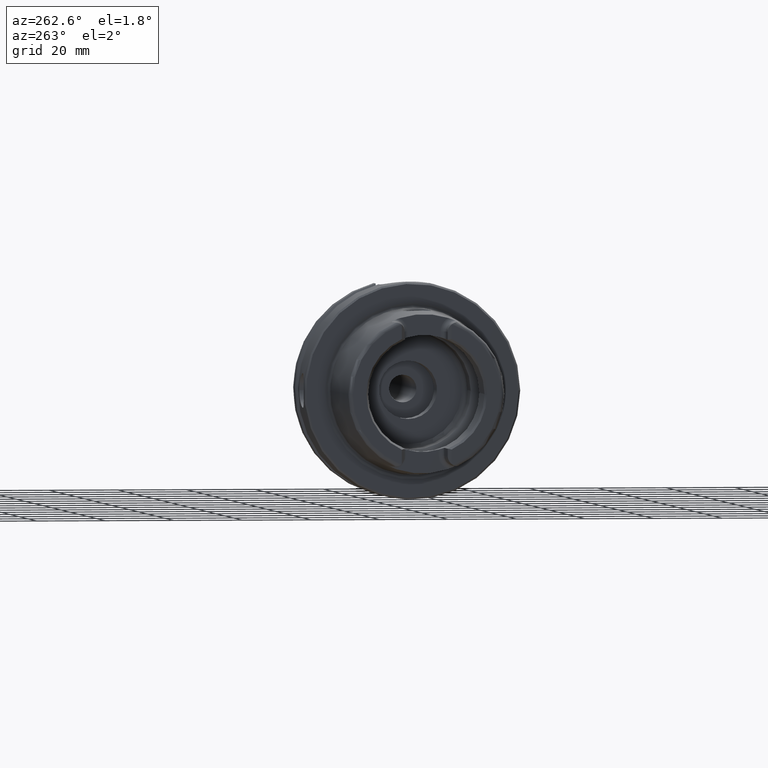
[diagram: clean part render]
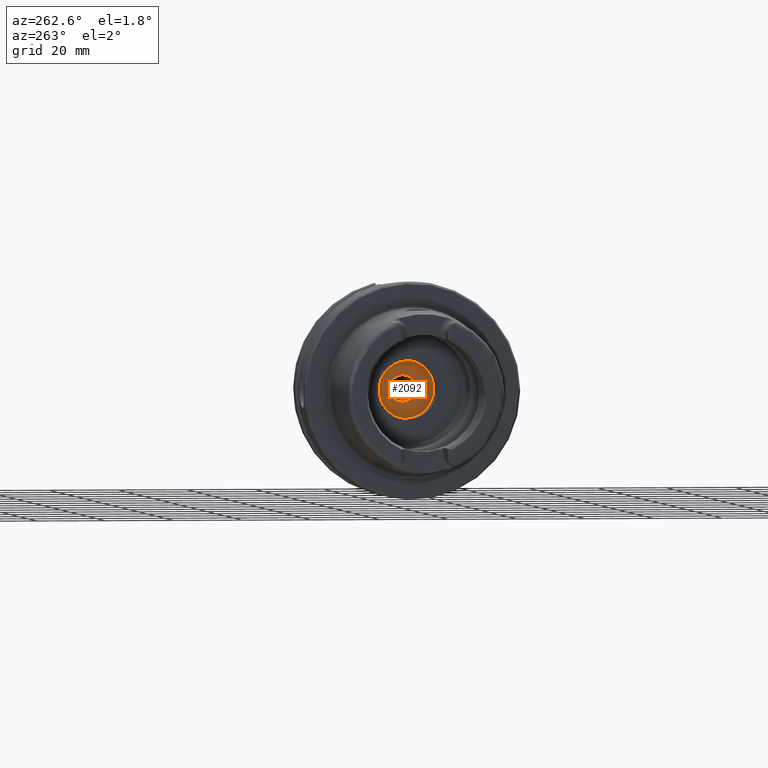
[diagram: same view with one face highlighted and labeled with its STEP entity id]
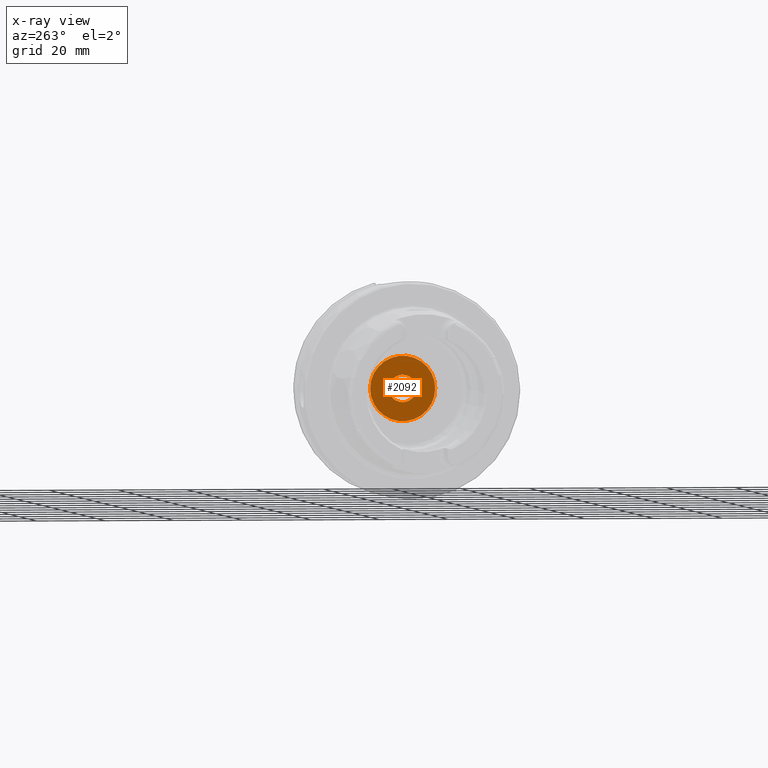
[diagram: x-ray of the same camera — body ghosted, the highlighted face saturated]
A machine part, auxiliary view. The second image highlights one B-rep face of the part: STEP entity #2092.
The next image is the same camera in x-ray: the body ghosted, the highlighted face saturated — about 0% of this face is hidden behind the body in this view.
In plain terms, the highlighted planar face has unit normal (1, 0, 0).
Its self-contained STEP definition (entity closure, byte-faithful):
#98=FACE_BOUND('',#448,.T.);
#140=PLANE('',#2350);
#318=FACE_OUTER_BOUND('',#447,.T.);
#447=EDGE_LOOP('',(#1909));
#448=EDGE_LOOP('',(#1910));
#701=CIRCLE('',#2155,4.);
#794=CIRCLE('',#2351,9.5);
#836=VERTEX_POINT('',#3065);
#1003=VERTEX_POINT('',#4417);
#1048=EDGE_CURVE('',#836,#836,#701,.T.);
#1310=EDGE_CURVE('',#1003,#1003,#794,.T.);
#1909=ORIENTED_EDGE('',*,*,#1310,.T.);
#1910=ORIENTED_EDGE('',*,*,#1048,.T.);
#2092=ADVANCED_FACE('',(#318,#98),#140,.F.);
#2155=AXIS2_PLACEMENT_3D('',#3066,#2450,#2451);
#2350=AXIS2_PLACEMENT_3D('',#4416,#2929,#2930);
#2351=AXIS2_PLACEMENT_3D('',#4418,#2931,#2932);
#2450=DIRECTION('center_axis',(1.,0.,0.));
#2451=DIRECTION('ref_axis',(0.,0.,1.));
#2929=DIRECTION('center_axis',(1.,0.,0.));
#2930=DIRECTION('ref_axis',(0.,0.,-1.));
#2931=DIRECTION('center_axis',(-1.,0.,0.));
#2932=DIRECTION('ref_axis',(0.,0.,1.));
#3065=CARTESIAN_POINT('',(22.,4.89858719658941E-16,-4.));
#3066=CARTESIAN_POINT('Origin',(22.,0.,0.));
#4416=CARTESIAN_POINT('Origin',(22.,9.5,0.));
#4417=CARTESIAN_POINT('',(22.,-9.5,1.16341445918999E-15));
#4418=CARTESIAN_POINT('Origin',(22.,0.,0.));